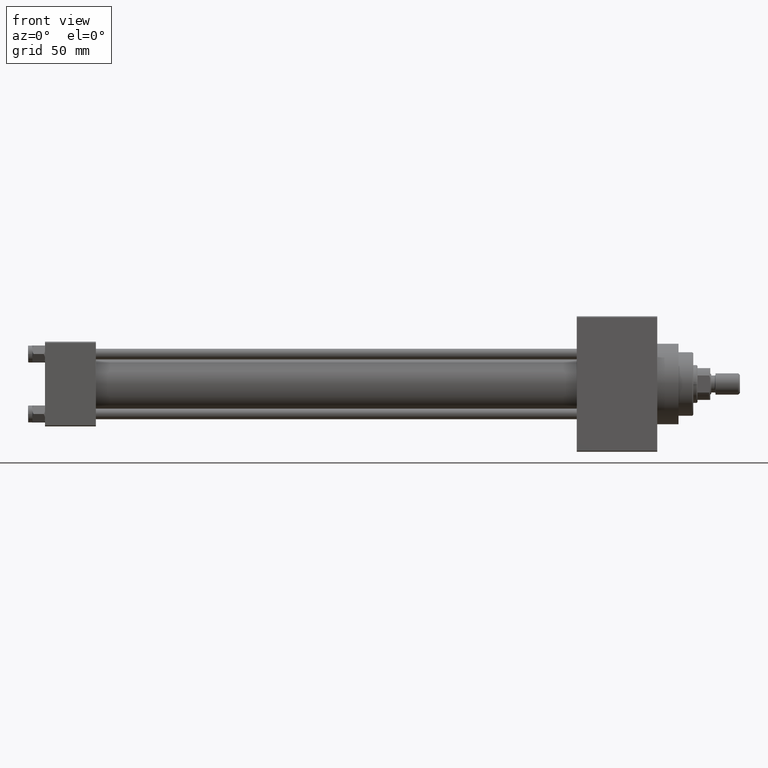
[diagram: clean part render]
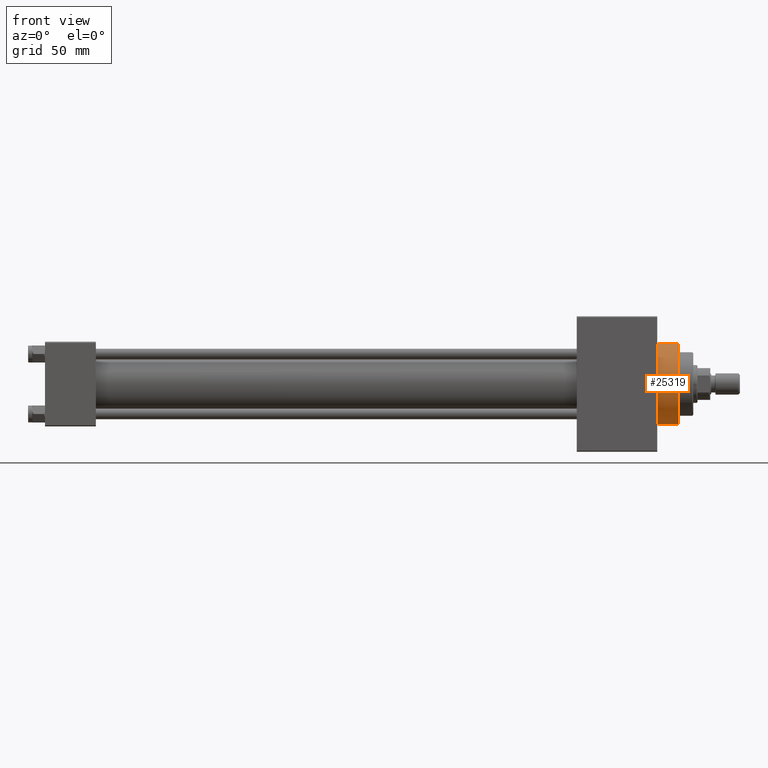
[diagram: same view with one face highlighted and labeled with its STEP entity id]
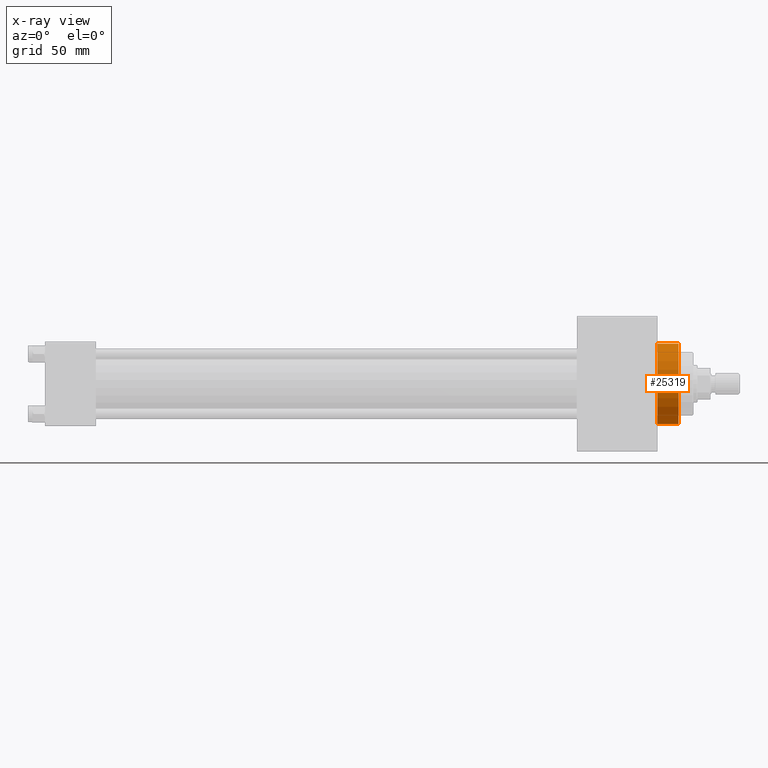
[diagram: x-ray of the same camera — body ghosted, the highlighted face saturated]
A machine part, front view. The second image highlights one B-rep face of the part: STEP entity #25319.
The next image is the same camera in x-ray: the body ghosted, the highlighted face saturated — about 0% of this face is hidden behind the body in this view.
In plain terms, the highlighted cylindrical surface (partial cylindrical patch) has radius 19 mm, axis along (-1, -0, -0).
Its self-contained STEP definition (entity closure, byte-faithful):
#437 = AXIS2_PLACEMENT_3D ( 'NONE', #21272, #36545, #2271 ) ;
#2271 = DIRECTION ( 'NONE',  ( 0.000000000000000000, 0.000000000000000000, 1.000000000000000000 ) ) ;
#2712 = DIRECTION ( 'NONE',  ( 0.000000000000000000, 0.000000000000000000, -1.000000000000000000 ) ) ;
#3396 = CARTESIAN_POINT ( 'NONE',  ( 299.0000000000000000, 0.000000000000000000, 19.00000000000000000 ) ) ;
#4679 = CARTESIAN_POINT ( 'NONE',  ( 289.0000000000000000, 0.000000000000000000, 19.00000000000000000 ) ) ;
#9418 = DIRECTION ( 'NONE',  ( 1.000000000000000000, 0.000000000000000000, 0.000000000000000000 ) ) ;
#11016 = ORIENTED_EDGE ( 'NONE', *, *, #28296, .F. ) ;
#11645 = ORIENTED_EDGE ( 'NONE', *, *, #16205, .F. ) ;
#13471 = CARTESIAN_POINT ( 'NONE',  ( 299.0000000000000000, 0.000000000000000000, 0.000000000000000000 ) ) ;
#13530 = FACE_OUTER_BOUND ( 'NONE', #40999, .T. ) ;
#14909 = CIRCLE ( 'NONE', #40486, 19.00000000000000000 ) ;
#16205 = EDGE_CURVE ( 'NONE', #21881, #21656, #37260, .T. ) ;
#17751 = CARTESIAN_POINT ( 'NONE',  ( 299.0000000000000000, 2.326828918379970970E-15, -19.00000000000000000 ) ) ;
#17784 = ORIENTED_EDGE ( 'NONE', *, *, #36173, .T. ) ;
#18446 = VECTOR ( 'NONE', #36676, 1000.000000000000000 ) ;
#19372 = VECTOR ( 'NONE', #45009, 1000.000000000000000 ) ;
#21272 = CARTESIAN_POINT ( 'NONE',  ( 299.0000000000000000, 0.000000000000000000, 0.000000000000000000 ) ) ;
#21656 = VERTEX_POINT ( 'NONE', #35191 ) ;
#21881 = VERTEX_POINT ( 'NONE', #22396 ) ;
#22282 = AXIS2_PLACEMENT_3D ( 'NONE', #43690, #9418, #43442 ) ;
#22396 = CARTESIAN_POINT ( 'NONE',  ( 299.0000000000000000, 2.326828918379970970E-15, -19.00000000000000000 ) ) ;
#23873 = CIRCLE ( 'NONE', #22282, 19.00000000000000000 ) ;
#25319 = ADVANCED_FACE ( 'NONE', ( #13530 ), #44059, .T. ) ;
#27242 = ORIENTED_EDGE ( 'NONE', *, *, #32027, .T. ) ;
#28296 = EDGE_CURVE ( 'NONE', #29045, #21881, #14909, .T. ) ;
#29045 = VERTEX_POINT ( 'NONE', #31946 ) ;
#31946 = CARTESIAN_POINT ( 'NONE',  ( 299.0000000000000000, 0.000000000000000000, 19.00000000000000000 ) ) ;
#32027 = EDGE_CURVE ( 'NONE', #34044, #21656, #23873, .T. ) ;
#34044 = VERTEX_POINT ( 'NONE', #4679 ) ;
#35191 = CARTESIAN_POINT ( 'NONE',  ( 289.0000000000000000, 2.326828918379970970E-15, -19.00000000000000000 ) ) ;
#36173 = EDGE_CURVE ( 'NONE', #29045, #34044, #48195, .T. ) ;
#36545 = DIRECTION ( 'NONE',  ( -1.000000000000000000, -0.000000000000000000, -0.000000000000000000 ) ) ;
#36676 = DIRECTION ( 'NONE',  ( -1.000000000000000000, -0.000000000000000000, -0.000000000000000000 ) ) ;
#37260 = LINE ( 'NONE', #17751, #19372 ) ;
#40486 = AXIS2_PLACEMENT_3D ( 'NONE', #13471, #44487, #2712 ) ;
#40999 = EDGE_LOOP ( 'NONE', ( #11645, #11016, #17784, #27242 ) ) ;
#43442 = DIRECTION ( 'NONE',  ( 0.000000000000000000, 0.000000000000000000, -1.000000000000000000 ) ) ;
#43690 = CARTESIAN_POINT ( 'NONE',  ( 289.0000000000000000, 0.000000000000000000, 0.000000000000000000 ) ) ;
#44059 = CYLINDRICAL_SURFACE ( 'NONE', #437, 19.00000000000000000 ) ;
#44487 = DIRECTION ( 'NONE',  ( 1.000000000000000000, 0.000000000000000000, 0.000000000000000000 ) ) ;
#45009 = DIRECTION ( 'NONE',  ( -1.000000000000000000, -0.000000000000000000, -0.000000000000000000 ) ) ;
#48195 = LINE ( 'NONE', #3396, #18446 ) ;